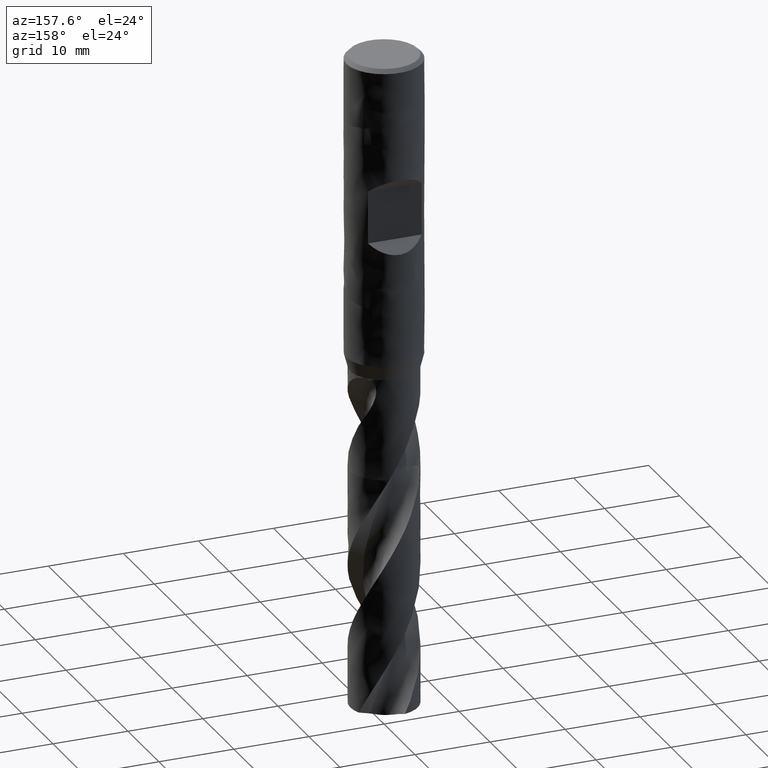
[diagram: clean part render]
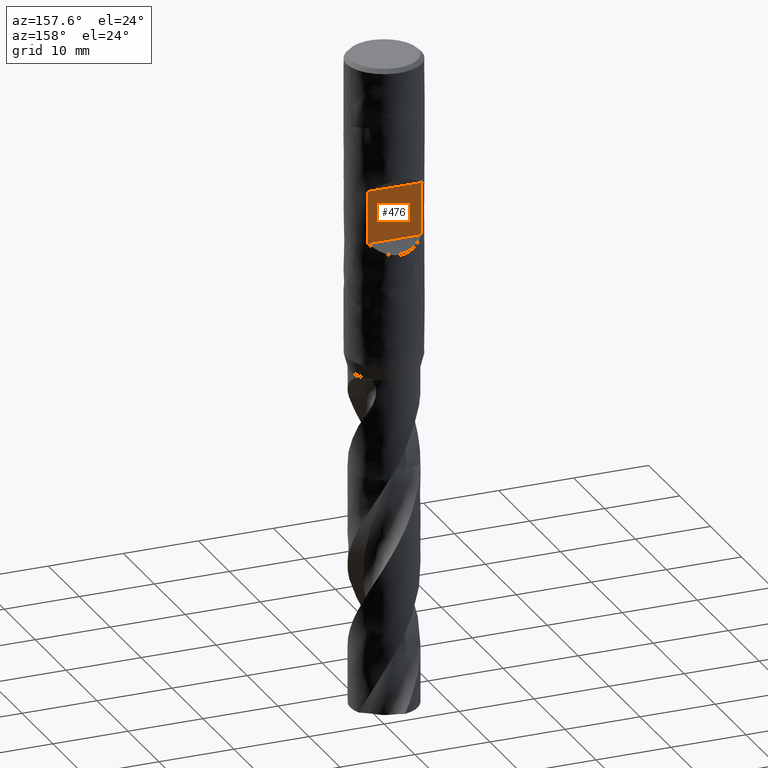
[diagram: same view with one face highlighted and labeled with its STEP entity id]
A machine part, auxiliary view. The second image highlights one B-rep face of the part: STEP entity #476.
In plain terms, the highlighted planar face has unit normal (0, 1, 0).
Its self-contained STEP definition (entity closure, byte-faithful):
#274 = EDGE_CURVE('', #275, #277, #279, .T.);
#275 = VERTEX_POINT('', #276);
#276 = CARTESIAN_POINT('', (3.57071421427142, 3.5, -16.5));
#277 = VERTEX_POINT('', #278);
#278 = CARTESIAN_POINT('', (3.57071421427142, 3.5, -23.5));
#279 = LINE('', #280, #281);
#280 = CARTESIAN_POINT('', (3.57071421427142, 3.5, -16.5));
#281 = VECTOR('', #282, 7.);
#282 = DIRECTION('', (4.44089209850063E-16, 4.44089209850063E-16, -7.));
#285 = VERTEX_POINT('', #286);
#286 = CARTESIAN_POINT('', (-3.57071421427142, 3.5, -16.5));
#371 = EDGE_CURVE('', #285, #372, #374, .T.);
#372 = VERTEX_POINT('', #373);
#373 = CARTESIAN_POINT('', (-3.57071421427142, 3.5, -23.5));
#374 = LINE('', #375, #376);
#375 = CARTESIAN_POINT('', (-3.57071421427142, 3.5, -16.5));
#376 = VECTOR('', #377, 7.);
#377 = DIRECTION('', (4.44089209850063E-16, 0., -7.));
#476 = ADVANCED_FACE('', (#477), #493, .T.);
#477 = FACE_OUTER_BOUND('', #478, .T.);
#478 = EDGE_LOOP('', (#479, #480, #486, #487));
#479 = ORIENTED_EDGE('', *, *, #274, .T.);
#480 = ORIENTED_EDGE('', *, *, #481, .T.);
#481 = EDGE_CURVE('', #277, #372, #482, .T.);
#482 = LINE('', #483, #484);
#483 = CARTESIAN_POINT('', (3.57071421427142, 3.5, -23.5));
#484 = VECTOR('', #485, 7.14142842854285);
#485 = DIRECTION('', (-7.14142842854285, 4.44089209850063E-16, 0.));
#486 = ORIENTED_EDGE('', *, *, #371, .F.);
#487 = ORIENTED_EDGE('', *, *, #488, .F.);
#488 = EDGE_CURVE('', #275, #285, #489, .T.);
#489 = LINE('', #490, #491);
#490 = CARTESIAN_POINT('', (3.57071421427142, 3.5, -16.5));
#491 = VECTOR('', #492, 7.14142842854285);
#492 = DIRECTION('', (-7.14142842854285, 4.44089209850063E-16, 0.));
#493 = PLANE('', #494);
#494 = AXIS2_PLACEMENT_3D('', #495, #496, #497);
#495 = CARTESIAN_POINT('', (5., 3.5, -23.5));
#496 = DIRECTION('', (8.88178419700125E-17, 1., 6.34413156928661E-17));
#497 = DIRECTION('', (-1., 8.88178419700125E-17, 0.));